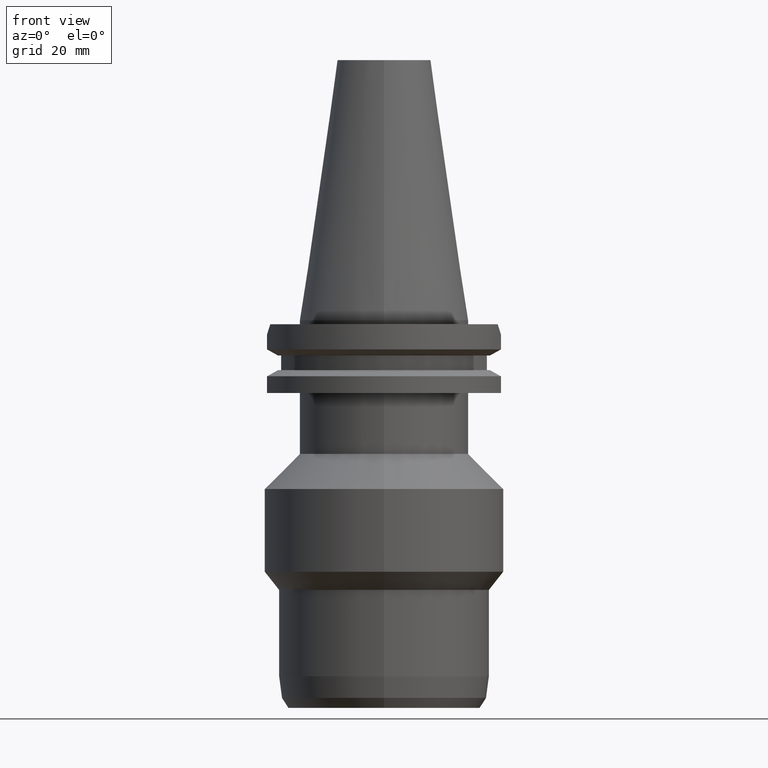
[diagram: clean part render]
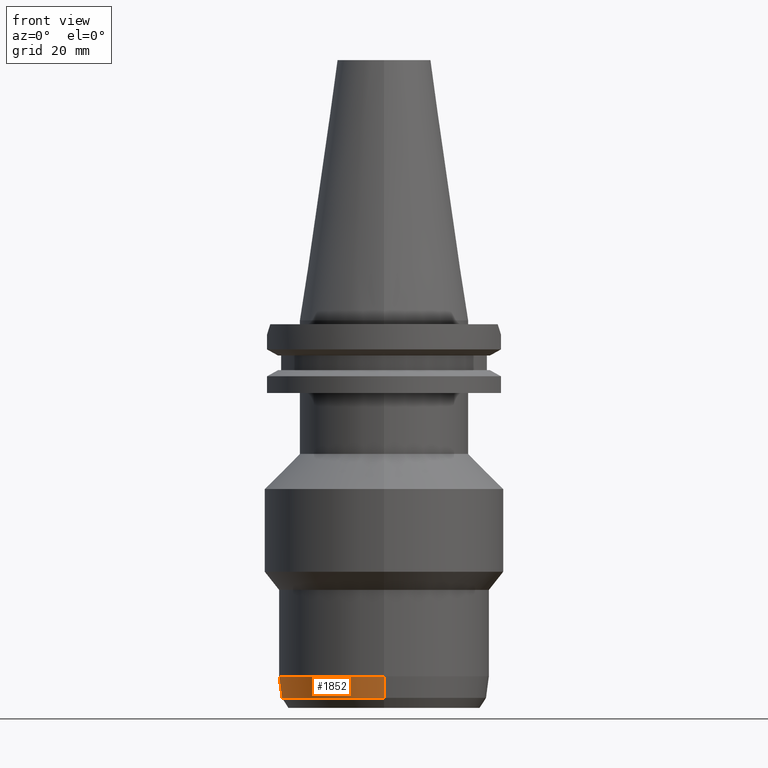
[diagram: same view with one face highlighted and labeled with its STEP entity id]
A machine part, front view. The second image highlights one B-rep face of the part: STEP entity #1852.
In plain terms, the highlighted conical surface has half-angle 7.5 deg.
Its self-contained STEP definition (entity closure, byte-faithful):
#362=CARTESIAN_POINT('',(0.E0,0.E0,-9.331E1));
#363=DIRECTION('',(0.E0,0.E0,1.E0));
#364=DIRECTION('',(0.E0,1.E0,0.E0));
#365=AXIS2_PLACEMENT_3D('',#362,#363,#364);
#370=DIRECTION('',(0.E0,1.305261922187E-1,-9.914448613740E-1));
#371=VECTOR('',#370,5.741844775751E0);
#372=CARTESIAN_POINT('',(0.E0,-2.75E1,-9.331E1));
#373=LINE('',#372,#371);
#377=CARTESIAN_POINT('',(0.E0,0.E0,-9.900272249772E1));
#378=DIRECTION('',(0.E0,0.E0,-1.E0));
#379=DIRECTION('',(0.E0,-1.E0,0.E0));
#380=AXIS2_PLACEMENT_3D('',#377,#378,#379);
#385=DIRECTION('',(0.E0,-1.305261922187E-1,-9.914448613740E-1));
#386=VECTOR('',#385,5.741844775751E0);
#387=CARTESIAN_POINT('',(0.E0,2.75E1,-9.331E1));
#388=LINE('',#387,#386);
#1358=CARTESIAN_POINT('',(0.E0,2.675053886511E1,-9.900272249773E1));
#1359=VERTEX_POINT('',#1358);
#1360=CARTESIAN_POINT('',(0.E0,-2.675053886511E1,-9.900272249773E1));
#1361=VERTEX_POINT('',#1360);
#1362=CARTESIAN_POINT('',(0.E0,2.75E1,-9.331E1));
#1363=VERTEX_POINT('',#1362);
#1364=CARTESIAN_POINT('',(0.E0,-2.75E1,-9.331E1));
#1365=VERTEX_POINT('',#1364);
#1838=CARTESIAN_POINT('',(0.E0,0.E0,-9.615636124886E1));
#1839=DIRECTION('',(0.E0,0.E0,1.E0));
#1840=DIRECTION('',(0.E0,1.E0,0.E0));
#1841=AXIS2_PLACEMENT_3D('',#1838,#1839,#1840);
#1842=CONICAL_SURFACE('',#1841,2.712526943255E1,7.5E0);
#1844=ORIENTED_EDGE('',*,*,#1843,.F.);
#1846=ORIENTED_EDGE('',*,*,#1845,.T.);
#1848=ORIENTED_EDGE('',*,*,#1847,.T.);
#1849=ORIENTED_EDGE('',*,*,#1831,.T.);
#1850=EDGE_LOOP('',(#1844,#1846,#1848,#1849));
#1851=FACE_OUTER_BOUND('',#1850,.F.);
#366=CIRCLE('',#365,2.75E1);
#381=CIRCLE('',#380,2.675053886510E1);
#1831=EDGE_CURVE('',#1361,#1359,#381,.T.);
#1843=EDGE_CURVE('',#1363,#1359,#388,.T.);
#1845=EDGE_CURVE('',#1363,#1365,#366,.T.);
#1847=EDGE_CURVE('',#1365,#1361,#373,.T.);
#1852=ADVANCED_FACE('',(#1851),#1842,.T.);